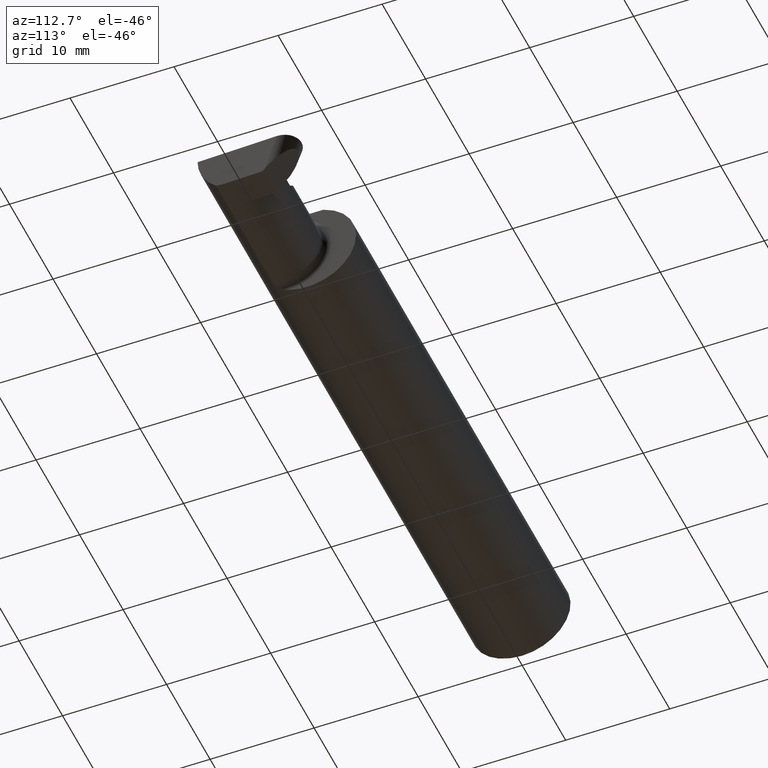
[diagram: clean part render]
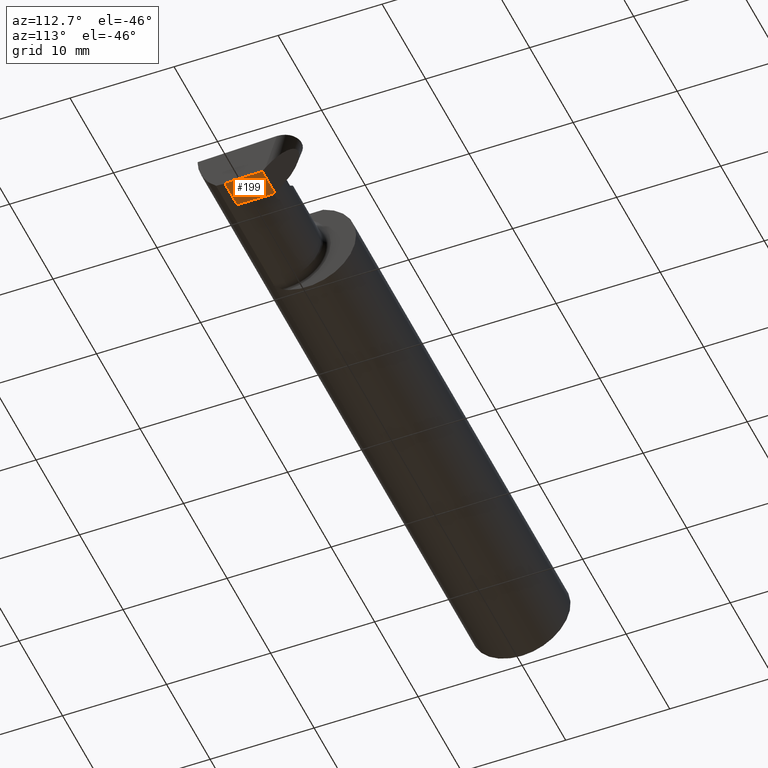
[diagram: same view with one face highlighted and labeled with its STEP entity id]
A machine part, auxiliary view. The second image highlights one B-rep face of the part: STEP entity #199.
In plain terms, the highlighted planar face has unit normal (0, 0, 1).
Its self-contained STEP definition (entity closure, byte-faithful):
#8 = VERTEX_POINT ( 'NONE', #556 ) ;
#17 = CARTESIAN_POINT ( 'NONE',  ( -0.001039370078740541395, 0.06030305154315079852, -0.1500000000000000500 ) ) ;
#24 = CARTESIAN_POINT ( 'NONE',  ( 2.733184360054361939, -0.08335000000000014619, -0.1500000000000000500 ) ) ;
#35 = LINE ( 'NONE', #473, #566 ) ;
#73 = DIRECTION ( 'NONE',  ( -0.03489949670249442581, -0.9993908270190959842, 0.000000000000000000 ) ) ;
#80 = LINE ( 'NONE', #17, #248 ) ;
#82 = EDGE_CURVE ( 'NONE', #212, #8, #577, .T. ) ;
#89 = ORIENTED_EDGE ( 'NONE', *, *, #298, .T. ) ;
#114 = VERTEX_POINT ( 'NONE', #312 ) ;
#199 = ADVANCED_FACE ( 'NONE', ( #266 ), #459, .F. ) ;
#212 = VERTEX_POINT ( 'NONE', #591 ) ;
#214 = DIRECTION ( 'NONE',  ( 1.000000000000000000, 0.000000000000000000, -0.000000000000000000 ) ) ;
#248 = VECTOR ( 'NONE', #463, 39.37007874015748143 ) ;
#256 = LINE ( 'NONE', #341, #326 ) ;
#266 = FACE_OUTER_BOUND ( 'NONE', #293, .T. ) ;
#293 = EDGE_LOOP ( 'NONE', ( #446, #648, #89, #408 ) ) ;
#298 = EDGE_CURVE ( 'NONE', #114, #510, #80, .T. ) ;
#312 = CARTESIAN_POINT ( 'NONE',  ( 2.379331556216793597, 0.06030305154315079852, -0.1500000000000000500 ) ) ;
#326 = VECTOR ( 'NONE', #73, 39.37007874015748143 ) ;
#341 = CARTESIAN_POINT ( 'NONE',  ( 2.490542817754151539, -0.07487677063221394314, -0.1500000000000000500 ) ) ;
#408 = ORIENTED_EDGE ( 'NONE', *, *, #608, .T. ) ;
#446 = ORIENTED_EDGE ( 'NONE', *, *, #82, .T. ) ;
#459 = PLANE ( 'NONE',  #594 ) ;
#463 = DIRECTION ( 'NONE',  ( 1.000000000000000000, -0.000000000000000000, -0.000000000000000000 ) ) ;
#467 = VECTOR ( 'NONE', #623, 39.37007874015748143 ) ;
#473 = CARTESIAN_POINT ( 'NONE',  ( 2.379376900814294871, -0.08346159389558752140, -0.1500000000000000500 ) ) ;
#510 = VERTEX_POINT ( 'NONE', #807 ) ;
#556 = CARTESIAN_POINT ( 'NONE',  ( 2.379376865616626535, -0.08334999999999999354, -0.1500000000000000500 ) ) ;
#566 = VECTOR ( 'NONE', #719, 39.37007874015748143 ) ;
#577 = LINE ( 'NONE', #625, #467 ) ;
#591 = CARTESIAN_POINT ( 'NONE',  ( 2.490246926064548560, -0.08335000000000014619, -0.1500000000000000500 ) ) ;
#594 = AXIS2_PLACEMENT_3D ( 'NONE', #24, #781, #214 ) ;
#608 = EDGE_CURVE ( 'NONE', #510, #212, #256, .T. ) ;
#623 = DIRECTION ( 'NONE',  ( -1.000000000000000000, -0.000000000000000000, -0.000000000000000000 ) ) ;
#625 = CARTESIAN_POINT ( 'NONE',  ( 2.733184360054361939, -0.08335000000000014619, -0.1500000000000000500 ) ) ;
#648 = ORIENTED_EDGE ( 'NONE', *, *, #806, .T. ) ;
#719 = DIRECTION ( 'NONE',  ( -0.0003154085283454462099, 0.9999999502587288980, 0.000000000000000000 ) ) ;
#781 = DIRECTION ( 'NONE',  ( 0.000000000000000000, 0.000000000000000000, 1.000000000000000000 ) ) ;
#806 = EDGE_CURVE ( 'NONE', #8, #114, #35, .T. ) ;
#807 = CARTESIAN_POINT ( 'NONE',  ( 2.495263401164271588, 0.06030305154315079158, -0.1500000000000000500 ) ) ;